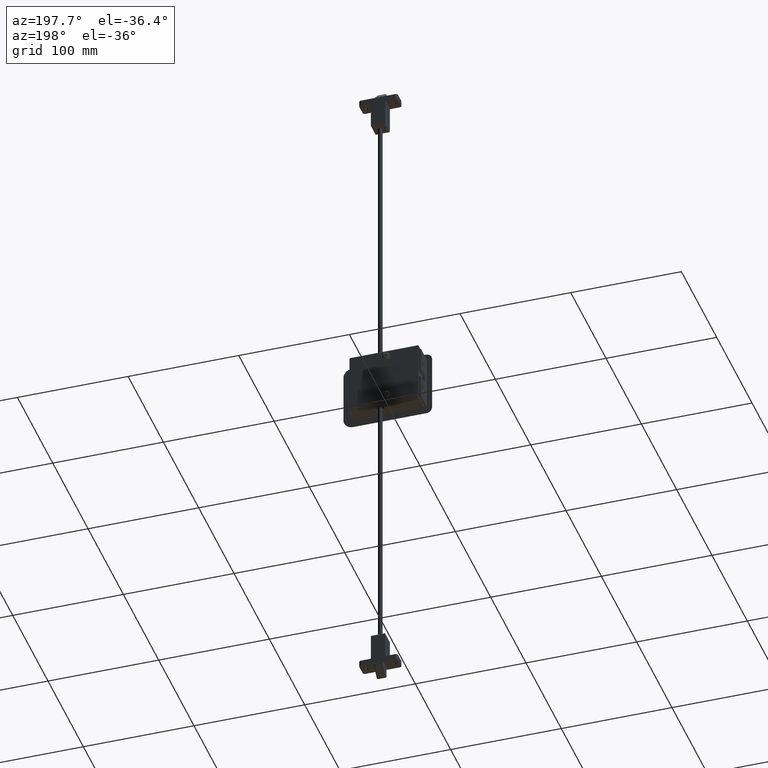
[diagram: clean part render]
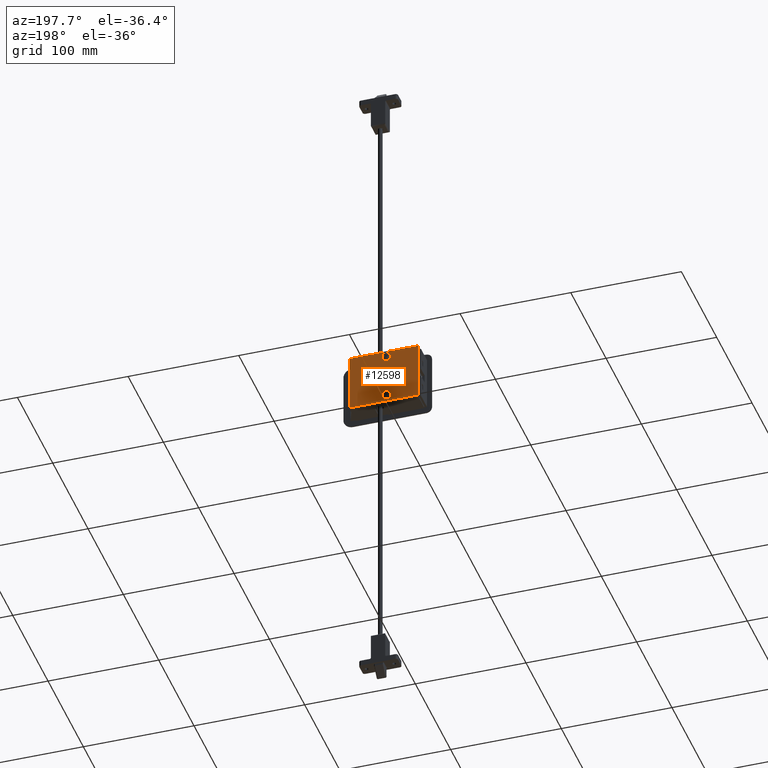
[diagram: same view with one face highlighted and labeled with its STEP entity id]
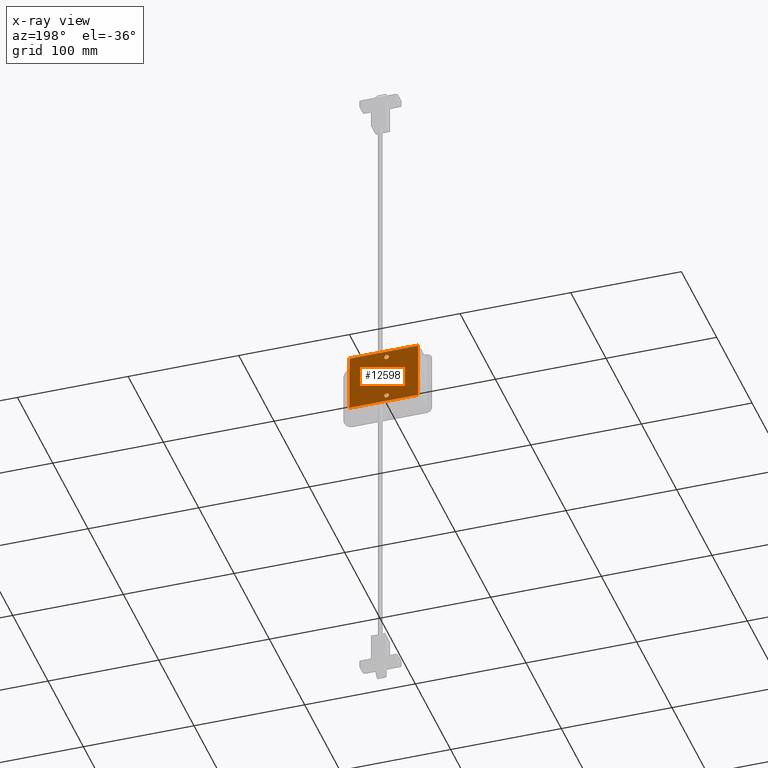
[diagram: x-ray of the same camera — body ghosted, the highlighted face saturated]
A machine part, auxiliary view. The second image highlights one B-rep face of the part: STEP entity #12598.
The next image is the same camera in x-ray: the body ghosted, the highlighted face saturated — about 0% of this face is hidden behind the body in this view.
In plain terms, the highlighted face is a freeform B-spline surface patch.
Its self-contained STEP definition (entity closure, byte-faithful):
#11177=CARTESIAN_POINT('',(22.006953846261300,43.750000000000000,-22.033489407781360));
#11178=VERTEX_POINT('',#11177);
#11184=CARTESIAN_POINT('',(20.499999682315671,43.750000000000000,-22.649999999999970));
#11185=VERTEX_POINT('',#11184);
#11186=CARTESIAN_POINT('',(20.499999682315671,43.750000000000000,-22.649999999999970));
#11187=CARTESIAN_POINT('',(20.743549814826540,43.750000000000007,-22.650179003490450));
#11188=CARTESIAN_POINT('',(21.300075521151019,43.749999999999922,-22.554351342063260));
#11189=CARTESIAN_POINT('',(21.783923978255832,43.750000000000050,-22.253354679047050));
#11190=CARTESIAN_POINT('',(22.006953846261300,43.750000000000000,-22.033489407781360));
#11191=B_SPLINE_CURVE_WITH_KNOTS('',3,(#11186,#11187,#11188,#11189,#11190),.UNSPECIFIED.,.F.,.U.,(4,1,4),(0.000000579519827,0.730693590432950,1.670006404911408),.UNSPECIFIED.);
#11192=EDGE_CURVE('',#11185,#11178,#11191,.T.);
#11194=CARTESIAN_POINT('',(18.350000000000001,43.750000000000000,-20.500000000000000));
#11195=VERTEX_POINT('',#11194);
#11196=CARTESIAN_POINT('',(18.350000000000001,43.750000000000000,-20.500000000000000));
#11197=CARTESIAN_POINT('',(18.349509081537530,43.750000000000021,-20.816728211946678));
#11198=CARTESIAN_POINT('',(18.468776864359569,43.750000000000043,-21.343984125196702));
#11199=CARTESIAN_POINT('',(18.864096221105981,43.749999999999922,-21.935224555355820));
#11200=CARTESIAN_POINT('',(19.481183320654392,43.750000000000192,-22.468351959470290));
#11201=CARTESIAN_POINT('',(20.077449883709331,43.749999999999872,-22.651381042715951));
#11202=CARTESIAN_POINT('',(20.499999682315671,43.750000000000000,-22.649999999999970));
#11203=B_SPLINE_CURVE_WITH_KNOTS('',3,(#11196,#11197,#11198,#11199,#11200,#11201,#11202),.UNSPECIFIED.,.F.,.U.,(4,1,1,1,4),(0.000002227310632,0.949955644128124,1.583371812779783,2.110957011027712,3.377550670595725),.UNSPECIFIED.);
#11204=EDGE_CURVE('',#11195,#11185,#11203,.T.);
#11206=CARTESIAN_POINT('',(20.500000317684339,43.750000000000000,-18.350000000000019));
#11207=VERTEX_POINT('',#11206);
#11208=CARTESIAN_POINT('',(20.500000317684339,43.750000000000000,-18.350000000000019));
#11209=CARTESIAN_POINT('',(20.183326115726199,43.749999999999943,-18.349562342178011));
#11210=CARTESIAN_POINT('',(19.515243159213210,43.750000000000107,-18.500215808438199));
#11211=CARTESIAN_POINT('',(18.617971425399400,43.749999999999879,-19.235262101407478));
#11212=CARTESIAN_POINT('',(18.348072779207680,43.750000000000071,-20.042326425261070));
#11213=CARTESIAN_POINT('',(18.350000000000001,43.750000000000000,-20.500000000000000));
#11214=B_SPLINE_CURVE_WITH_KNOTS('',3,(#11208,#11209,#11210,#11211,#11212,#11213),.UNSPECIFIED.,.F.,.U.,(4,1,1,4),(0.000002225637821,0.949955743484870,2.005310940079634,3.377551028734954),.UNSPECIFIED.);
#11215=EDGE_CURVE('',#11207,#11195,#11214,.T.);
#11217=CARTESIAN_POINT('',(22.033489520072401,43.750000000000000,-18.993046041418410));
#11218=VERTEX_POINT('',#11217);
#11219=CARTESIAN_POINT('',(22.033489520072401,43.750000000000000,-18.993046041418410));
#11220=CARTESIAN_POINT('',(21.859065196932921,43.750000000000021,-18.815292072171189));
#11221=CARTESIAN_POINT('',(21.388774736225649,43.749999999999957,-18.479686719389640));
#11222=CARTESIAN_POINT('',(20.820217218031608,43.749999999999979,-18.349464239655550));
#11223=CARTESIAN_POINT('',(20.500000317684339,43.750000000000000,-18.350000000000019));
#11224=B_SPLINE_CURVE_WITH_KNOTS('',3,(#11219,#11220,#11221,#11222,#11223),.UNSPECIFIED.,.F.,.U.,(4,1,4),(0.000000647408318,0.747121049704941,1.707544543402423),.UNSPECIFIED.);
#11225=EDGE_CURVE('',#11218,#11207,#11224,.T.);
#11301=CARTESIAN_POINT('',(22.649999999999999,43.750000000000000,-20.500000000000000));
#11302=VERTEX_POINT('',#11301);
#11303=CARTESIAN_POINT('',(22.649999999999999,43.750000000000000,-20.500000000000000));
#11304=CARTESIAN_POINT('',(22.650177555392990,43.749999999999993,-20.256448380300089));
#11305=CARTESIAN_POINT('',(22.554352934576311,43.750000000000057,-19.699927090781799));
#11306=CARTESIAN_POINT('',(22.253354657736828,43.749999999999957,-19.216075717112108));
#11307=CARTESIAN_POINT('',(22.033489520072401,43.750000000000000,-18.993046041418410));
#11308=B_SPLINE_CURVE_WITH_KNOTS('',3,(#11303,#11304,#11305,#11306,#11307),.UNSPECIFIED.,.F.,.U.,(4,1,4),(0.000000579545565,0.730693478946250,1.670006150221552),.UNSPECIFIED.);
#11309=EDGE_CURVE('',#11302,#11218,#11308,.T.);
#11311=CARTESIAN_POINT('',(22.006953846261300,43.750000000000000,-22.033489407781360));
#11312=CARTESIAN_POINT('',(22.235699321447932,43.750000000000050,-21.809422310553138));
#11313=CARTESIAN_POINT('',(22.550041675175549,43.750000000000007,-21.318057323818621));
#11314=CARTESIAN_POINT('',(22.650139470032659,43.749999999999979,-20.749021775235811));
#11315=CARTESIAN_POINT('',(22.649999999999999,43.750000000000000,-20.500000000000000));
#11316=B_SPLINE_CURVE_WITH_KNOTS('',3,(#11311,#11312,#11313,#11314,#11315),.UNSPECIFIED.,.F.,.U.,(4,1,4),(0.000000647436958,0.960424285150611,1.707544799524462),.UNSPECIFIED.);
#11317=EDGE_CURVE('',#11178,#11302,#11316,.T.);
#11357=CARTESIAN_POINT('',(22.006953846261300,43.750000000000000,18.966510592218640));
#11358=VERTEX_POINT('',#11357);
#11364=CARTESIAN_POINT('',(20.499999682315671,43.750000000000000,18.350000000000030));
#11365=VERTEX_POINT('',#11364);
#11366=CARTESIAN_POINT('',(20.499999682315671,43.750000000000000,18.350000000000030));
#11367=CARTESIAN_POINT('',(20.743545686632519,43.750000000000028,18.349838853173939));
#11368=CARTESIAN_POINT('',(21.300076129817018,43.750000000000021,18.445620418342280));
#11369=CARTESIAN_POINT('',(21.783924158926389,43.750000000000007,18.746660259355838));
#11370=CARTESIAN_POINT('',(22.006953846261300,43.750000000000000,18.966510592218640));
#11371=B_SPLINE_CURVE_WITH_KNOTS('',3,(#11366,#11367,#11368,#11369,#11370),.UNSPECIFIED.,.F.,.U.,(4,1,4),(0.000000579519966,0.730693590433029,1.670006404911405),.UNSPECIFIED.);
#11372=EDGE_CURVE('',#11365,#11358,#11371,.T.);
#11374=CARTESIAN_POINT('',(18.350000000000001,43.750000000000000,20.500000000000000));
#11375=VERTEX_POINT('',#11374);
#11376=CARTESIAN_POINT('',(18.350000000000001,43.750000000000000,20.500000000000000));
#11377=CARTESIAN_POINT('',(18.349883247218351,43.749999999999957,20.253751694987969));
#11378=CARTESIAN_POINT('',(18.441545691986750,43.749999999999972,19.726092408752031));
#11379=CARTESIAN_POINT('',(18.902034908813430,43.750000000000163,18.956528231486569));
#11380=CARTESIAN_POINT('',(19.655587389212879,43.749999999999638,18.453399589224919));
#11381=CARTESIAN_POINT('',(20.253783003131201,43.750000000000178,18.349926520932861));
#11382=CARTESIAN_POINT('',(20.499999682315671,43.750000000000000,18.350000000000030));
#11383=B_SPLINE_CURVE_WITH_KNOTS('',3,(#11376,#11377,#11378,#11379,#11380,#11381,#11382),.UNSPECIFIED.,.F.,.U.,(4,1,1,1,4),(0.000002227310616,0.738823032263391,1.583371812779873,2.638729865123342,3.377550670595726),.UNSPECIFIED.);
#11384=EDGE_CURVE('',#11375,#11365,#11383,.T.);
#11386=CARTESIAN_POINT('',(20.500000317684339,43.749999999999993,22.649999999999970));
#11387=VERTEX_POINT('',#11386);
#11388=CARTESIAN_POINT('',(20.500000317684339,43.749999999999993,22.649999999999970));
#11389=CARTESIAN_POINT('',(20.183288557798360,43.750000000000043,22.650457926932710));
#11390=CARTESIAN_POINT('',(19.585694642592120,43.749999999999950,22.515521193210802));
#11391=CARTESIAN_POINT('',(18.923194275851230,43.750000000000057,22.024192043108819));
#11392=CARTESIAN_POINT('',(18.468805579179271,43.749999999999943,21.343977020141821));
#11393=CARTESIAN_POINT('',(18.349500453558139,43.750000000000021,20.816710595408971));
#11394=CARTESIAN_POINT('',(18.350000000000001,43.750000000000000,20.500000000000000));
#11395=B_SPLINE_CURVE_WITH_KNOTS('',3,(#11388,#11389,#11390,#11391,#11392,#11393,#11394),.UNSPECIFIED.,.F.,.U.,(4,1,1,1,4),(0.000002225637791,0.949955743484859,1.794181275272841,2.427597511430180,3.377551028734952),.UNSPECIFIED.);
#11396=EDGE_CURVE('',#11387,#11375,#11395,.T.);
#11398=CARTESIAN_POINT('',(22.033489520072390,43.749999999999993,22.006953958581590));
#11399=VERTEX_POINT('',#11398);
#11400=CARTESIAN_POINT('',(22.033489520072390,43.749999999999993,22.006953958581590));
#11401=CARTESIAN_POINT('',(21.809422005565679,43.750000000000000,22.235698750883088));
#11402=CARTESIAN_POINT('',(21.318056935557671,43.749999999999950,22.550042048271919));
#11403=CARTESIAN_POINT('',(20.749022612829719,43.749999999999993,22.650138889271592));
#11404=CARTESIAN_POINT('',(20.500000317684339,43.749999999999993,22.649999999999970));
#11405=B_SPLINE_CURVE_WITH_KNOTS('',3,(#11400,#11401,#11402,#11403,#11404),.UNSPECIFIED.,.F.,.U.,(4,1,4),(0.000000647408544,0.960424141145897,1.707544543402414),.UNSPECIFIED.);
#11406=EDGE_CURVE('',#11399,#11387,#11405,.T.);
#11481=CARTESIAN_POINT('',(22.649999999999999,43.750000000000000,20.500000000000000));
#11482=VERTEX_POINT('',#11481);
#11483=CARTESIAN_POINT('',(22.649999999999999,43.750000000000000,20.500000000000000));
#11484=CARTESIAN_POINT('',(22.650469528133019,43.750000000000007,20.813158454760881));
#11485=CARTESIAN_POINT('',(22.526111420103572,43.749999999999993,21.369311348689319));
#11486=CARTESIAN_POINT('',(22.204284470082460,43.750000000000007,21.833332690497439));
#11487=CARTESIAN_POINT('',(22.033489520072390,43.749999999999993,22.006953958581590));
#11488=B_SPLINE_CURVE_WITH_KNOTS('',3,(#11483,#11484,#11485,#11486,#11487),.UNSPECIFIED.,.F.,.U.,(4,1,4),(0.000000579545428,0.939313250781041,1.670006150221550),.UNSPECIFIED.);
#11489=EDGE_CURVE('',#11482,#11399,#11488,.T.);
#11491=CARTESIAN_POINT('',(22.006953846261300,43.750000000000000,18.966510592218640));
#11492=CARTESIAN_POINT('',(22.235733587467081,43.750000000000099,19.190574941759959));
#11493=CARTESIAN_POINT('',(22.549957977390370,43.749999999999801,19.681953418574111));
#11494=CARTESIAN_POINT('',(22.650191406120172,43.750000000000142,20.250970874763080));
#11495=CARTESIAN_POINT('',(22.649999999999999,43.750000000000000,20.500000000000000));
#11496=B_SPLINE_CURVE_WITH_KNOTS('',3,(#11491,#11492,#11493,#11494,#11495),.UNSPECIFIED.,.F.,.U.,(4,1,4),(0.000000647436865,0.960424285150654,1.707544799524462),.UNSPECIFIED.);
#11497=EDGE_CURVE('',#11358,#11482,#11496,.T.);
#12193=CARTESIAN_POINT('',(54.0,43.750000000000000,-26.300000000000001));
#12194=VERTEX_POINT('',#12193);
#12204=CARTESIAN_POINT('',(54.0,43.750000000000000,26.300000000000001));
#12205=VERTEX_POINT('',#12204);
#12206=CARTESIAN_POINT('',(54.0,43.750000000000000,-26.300000000000001));
#12207=CARTESIAN_POINT('',(54.0,43.750000000000000,26.300000000000001));
#12208=QUASI_UNIFORM_CURVE('',1,(#12206,#12207),.UNSPECIFIED.,.F.,.U.);
#12209=EDGE_CURVE('',#12194,#12205,#12208,.T.);
#12283=CARTESIAN_POINT('',(-8.0,43.750000000000000,26.300000000000001));
#12284=VERTEX_POINT('',#12283);
#12294=CARTESIAN_POINT('',(-8.0,43.750000000000000,-26.300000000000001));
#12295=VERTEX_POINT('',#12294);
#12296=CARTESIAN_POINT('',(-8.0,43.750000000000000,-26.300000000000001));
#12297=CARTESIAN_POINT('',(-8.0,43.750000000000000,26.300000000000001));
#12298=QUASI_UNIFORM_CURVE('',1,(#12296,#12297),.UNSPECIFIED.,.F.,.U.);
#12299=EDGE_CURVE('',#12295,#12284,#12298,.T.);
#12406=CARTESIAN_POINT('',(-8.0,43.750000000000000,26.300000000000001));
#12407=CARTESIAN_POINT('',(54.0,43.750000000000000,26.300000000000001));
#12408=QUASI_UNIFORM_CURVE('',1,(#12406,#12407),.UNSPECIFIED.,.F.,.U.);
#12409=EDGE_CURVE('',#12284,#12205,#12408,.T.);
#12437=CARTESIAN_POINT('',(-8.0,43.750000000000000,-26.300000000000001));
#12438=CARTESIAN_POINT('',(54.0,43.750000000000000,-26.300000000000001));
#12439=QUASI_UNIFORM_CURVE('',1,(#12437,#12438),.UNSPECIFIED.,.F.,.U.);
#12440=EDGE_CURVE('',#12295,#12194,#12439,.T.);
#12571=CARTESIAN_POINT('',(-11.096899879831970,43.750000000000000,-28.927369216355689));
#12572=CARTESIAN_POINT('',(-11.096899879831970,43.750000000000000,28.927367335233100));
#12573=CARTESIAN_POINT('',(57.096901542801561,43.750000000000000,-28.927369216355689));
#12574=CARTESIAN_POINT('',(57.096901542801561,43.750000000000000,28.927367335233100));
#12575=B_SPLINE_SURFACE_WITH_KNOTS('',1,1,((#12571,#12573),(#12572,#12574)),.UNSPECIFIED.,.F.,.F.,.U.,(2,2),(2,2),(0.0,57.854736551588793),(0.0,68.193801422633527),.UNSPECIFIED.);
#12576=ORIENTED_EDGE('',*,*,#12209,.F.);
#12577=ORIENTED_EDGE('',*,*,#12440,.F.);
#12578=ORIENTED_EDGE('',*,*,#12299,.T.);
#12579=ORIENTED_EDGE('',*,*,#12409,.T.);
#12580=EDGE_LOOP('',(#12576,#12577,#12578,#12579));
#12581=FACE_OUTER_BOUND('',#12580,.T.);
#12582=ORIENTED_EDGE('',*,*,#11396,.T.);
#12583=ORIENTED_EDGE('',*,*,#11384,.T.);
#12584=ORIENTED_EDGE('',*,*,#11372,.T.);
#12585=ORIENTED_EDGE('',*,*,#11497,.T.);
#12586=ORIENTED_EDGE('',*,*,#11489,.T.);
#12587=ORIENTED_EDGE('',*,*,#11406,.T.);
#12588=EDGE_LOOP('',(#12582,#12583,#12584,#12585,#12586,#12587));
#12589=FACE_BOUND('',#12588,.T.);
#12590=ORIENTED_EDGE('',*,*,#11215,.T.);
#12591=ORIENTED_EDGE('',*,*,#11204,.T.);
#12592=ORIENTED_EDGE('',*,*,#11192,.T.);
#12593=ORIENTED_EDGE('',*,*,#11317,.T.);
#12594=ORIENTED_EDGE('',*,*,#11309,.T.);
#12595=ORIENTED_EDGE('',*,*,#11225,.T.);
#12596=EDGE_LOOP('',(#12590,#12591,#12592,#12593,#12594,#12595));
#12597=FACE_BOUND('',#12596,.T.);
#12598=ADVANCED_FACE('',(#12581,#12589,#12597),#12575,.T.);